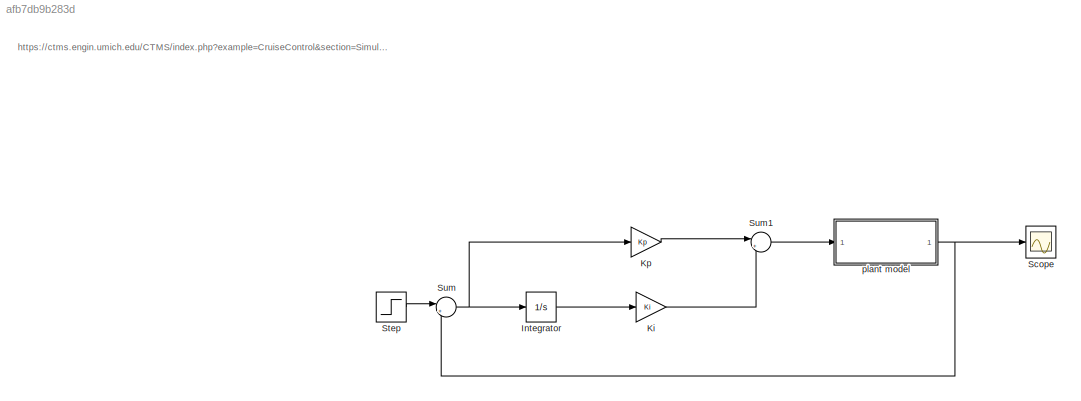
MODEL slx_afb7db9b283d
KIND model
CONFIG AbsTol = auto
CONFIG EnableMultiTasking = off
CONFIG FixedStep = auto
CONFIG MaxStep = auto
CONFIG MinStep = auto
CONFIG RelTol = 1e-3
CONFIG SampleTimeConstraint = Unconstrained
CONFIG Solver = VariableStepAuto
CONFIG SolverName = VariableStepAuto
CONFIG StartTime = 0.0
CONFIG StopTime = 10.0
BLOCK [Integrator] Integrator
  Ports = [1, 1]
BLOCK [Gain] Ki
  Gain = Ki
  OutDataTypeStr = Inherit: Inherit via internal rule
  ParamDataTypeStr = Inherit: Inherit via internal rule
  SaturateOnIntegerOverflow = off
BLOCK [Gain] Kp
  Gain = Kp
  OutDataTypeStr = Inherit: Inherit via internal rule
  ParamDataTypeStr = Inherit: Inherit via internal rule
  SaturateOnIntegerOverflow = off
BLOCK [Scope] Scope
  Floating = off
  NumInputPorts = 1
  Ports = [1]
  ScopeSpecificationString = Simulink.scopes.TimeScopeBlockCfg('CurrentConfiguration', extmgr.ConfigurationSet(extmgr.Configuration('Core','General UI',true),extmgr.Configuration('Core','Source UI',true),extmgr.Configuration('Sources','WiredSimulink',true),extmgr.Configuration('Visuals','Time Domain',true,'SerializedDisplays',{struct('MinYLimReal','-62.47897','MaxYLimReal','562.31073','YLabelReal','','MinYLimMag','0.00000','M...<+1342ch>
BLOCK [Step] Step
  After = u
  SampleTime = 0
  Time = 0
BLOCK [Sum] Sum
  IconShape = round
  InputSameDT = off
  Inputs = |+-
  OutDataTypeStr = Inherit: Inherit via internal rule
  Ports = [2, 1]
  SaturateOnIntegerOverflow = off
BLOCK [Sum] Sum1
  IconShape = round
  InputSameDT = off
  Inputs = |++
  OutDataTypeStr = Inherit: Inherit via internal rule
  Ports = [2, 1]
  SaturateOnIntegerOverflow = off
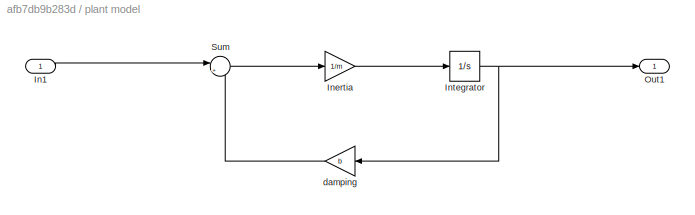
BLOCK [SubSystem] plant model 
  Ports = [1, 1]
  RequestExecContextInheritance = off
BLOCK [Inport] plant model /In1
  IconDisplay = Port number
BLOCK [Gain] plant model /Inertia
  Gain = 1/m
  OutDataTypeStr = Inherit: Inherit via internal rule
  ParamDataTypeStr = Inherit: Inherit via internal rule
  SaturateOnIntegerOverflow = off
BLOCK [Integrator] plant model /Integrator
  Ports = [1, 1]
BLOCK [Outport] plant model /Out1
  IconDisplay = Port number
BLOCK [Sum] plant model /Sum
  IconShape = round
  InputSameDT = off
  Inputs = |+-
  OutDataTypeStr = Inherit: Inherit via internal rule
  Ports = [2, 1]
  SaturateOnIntegerOverflow = off
BLOCK [Gain] plant model /damping
  Gain = b
  OutDataTypeStr = Inherit: Inherit via internal rule
  ParamDataTypeStr = Inherit: Inherit via internal rule
  SaturateOnIntegerOverflow = off
ANNOTATION (root): https://ctms.engin.umich.edu/CTMS/index.php?example=CruiseControl&section=SimulinkSimscape
LINE Integrator:1 -> Ki:1
LINE Ki:1 -> Sum1:2
LINE Kp:1 -> Sum1:1
LINE Step:1 -> Sum:1
LINE Sum1:1 -> plant model :1
NET Sum:1 -> Integrator:1, Kp:1
LINE plant model /In1:1 -> plant model /Sum:1
LINE plant model /Inertia:1 -> plant model /Integrator:1
NET plant model /Integrator:1 -> plant model /Out1:1, plant model /damping:1
LINE plant model /Sum:1 -> plant model /Inertia:1
LINE plant model /damping:1 -> plant model /Sum:2
NET plant model :1 -> Scope:1, Sum:2
note: NET lines group one-source signal fan-out (src -> all destinations, sorted); 1:1 wires keep LINE
